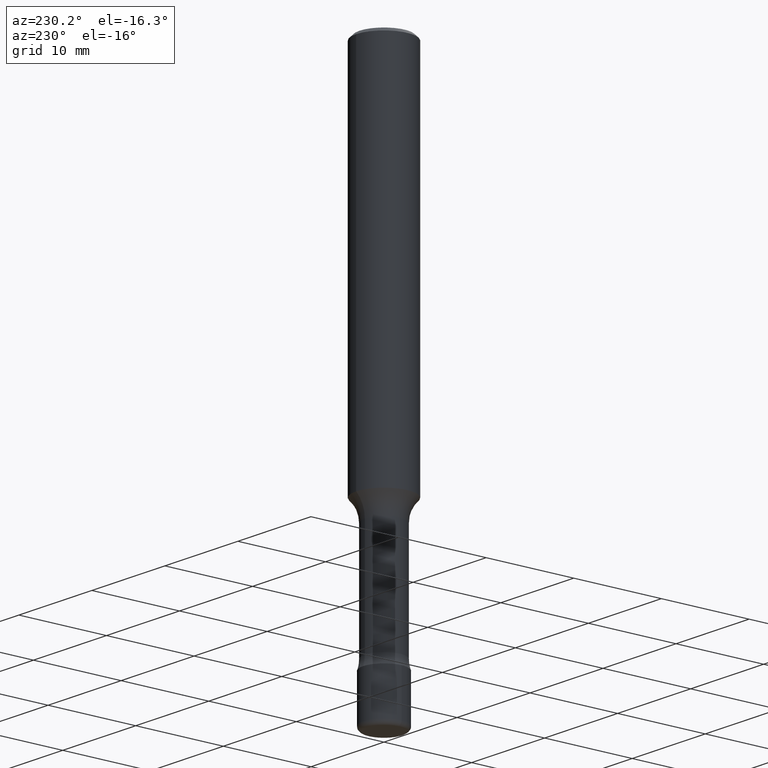
[diagram: clean part render]
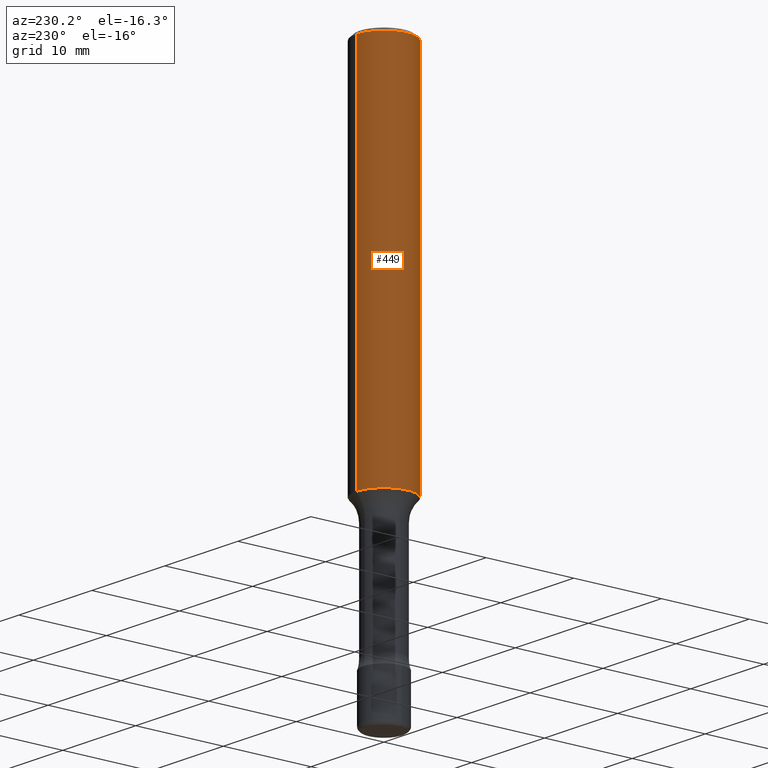
[diagram: same view with one face highlighted and labeled with its STEP entity id]
A machine part, auxiliary view. The second image highlights one B-rep face of the part: STEP entity #449.
In plain terms, the highlighted cylindrical surface (edge-blend (fillet) strip) has radius 3.175 mm, axis along (-0, 0, 1).
Its self-contained STEP definition (entity closure, byte-faithful):
#14 = CARTESIAN_POINT ( 'NONE',  ( 4.058307676616892084E-29, -5.792543071552269499E-15, -1.659286164230587390 ) ) ;
#36 = ORIENTED_EDGE ( 'NONE', *, *, #215, .T. ) ;
#45 = VERTEX_POINT ( 'NONE', #341 ) ;
#47 = EDGE_CURVE ( 'NONE', #242, #484, #496, .T. ) ;
#48 = FACE_OUTER_BOUND ( 'NONE', #67, .T. ) ;
#58 = VECTOR ( 'NONE', #223, 39.37007874015748143 ) ;
#61 = DIRECTION ( 'NONE',  ( -2.445815413942617356E-29, 3.490984976806744767E-15, 1.000000000000000000 ) ) ;
#66 = CARTESIAN_POINT ( 'NONE',  ( 3.668723120913929659E-31, -5.236477465210122771E-17, -0.01500000000000001506 ) ) ;
#67 = EDGE_LOOP ( 'NONE', ( #363, #36, #79, #245 ) ) ;
#79 = ORIENTED_EDGE ( 'NONE', *, *, #47, .T. ) ;
#80 = CARTESIAN_POINT ( 'NONE',  ( -1.169113584055446105E-44, 1.669184350826100908E-30, 4.780733988912460139E-16 ) ) ;
#87 = CYLINDRICAL_SURFACE ( 'NONE', #450, 0.1250000000000000000 ) ;
#118 = CARTESIAN_POINT ( 'NONE',  ( -8.728703347107426139E-16, -0.1250000000000057732, -1.659286164230586946 ) ) ;
#130 = VECTOR ( 'NONE', #451, 39.37007874015748143 ) ;
#135 = CARTESIAN_POINT ( 'NONE',  ( -8.728703347107832402E-16, -0.1250000000000000000, 9.144465209920891591E-16 ) ) ;
#182 = CIRCLE ( 'NONE', #466, 0.1250000000000000000 ) ;
#200 = DIRECTION ( 'NONE',  ( -2.445815413942617356E-29, 3.490984976806744767E-15, 1.000000000000000000 ) ) ;
#215 = EDGE_CURVE ( 'NONE', #45, #242, #404, .T. ) ;
#223 = DIRECTION ( 'NONE',  ( -2.445815413942617636E-29, 3.490984976806744767E-15, 1.000000000000000000 ) ) ;
#242 = VERTEX_POINT ( 'NONE', #118 ) ;
#245 = ORIENTED_EDGE ( 'NONE', *, *, #314, .F. ) ;
#283 = DIRECTION ( 'NONE',  ( -2.445815413942617356E-29, 3.490984976806744767E-15, 1.000000000000000000 ) ) ;
#284 = VERTEX_POINT ( 'NONE', #477 ) ;
#289 = DIRECTION ( 'NONE',  ( -6.982962677686265922E-15, -1.000000000000000000, 3.490984976806744767E-15 ) ) ;
#298 = AXIS2_PLACEMENT_3D ( 'NONE', #14, #61, #380 ) ;
#314 = EDGE_CURVE ( 'NONE', #284, #484, #182, .T. ) ;
#330 = CARTESIAN_POINT ( 'NONE',  ( -8.575622497214409523E-16, -0.1250000000000000555, -0.01499999999999957964 ) ) ;
#341 = CARTESIAN_POINT ( 'NONE',  ( 8.881784197001654642E-16, 0.1249999999999941713, -1.659286164230588057 ) ) ;
#363 = ORIENTED_EDGE ( 'NONE', *, *, #520, .F. ) ;
#380 = DIRECTION ( 'NONE',  ( -6.982962677686265922E-15, -1.000000000000000000, 4.370956789862821150E-15 ) ) ;
#385 = DIRECTION ( 'NONE',  ( -6.982962677686265922E-15, -1.000000000000000000, 3.483106191921935554E-15 ) ) ;
#404 = CIRCLE ( 'NONE', #298, 0.1250000000000000000 ) ;
#449 = ADVANCED_FACE ( 'NONE', ( #48 ), #87, .T. ) ;
#450 = AXIS2_PLACEMENT_3D ( 'NONE', #80, #200, #289 ) ;
#451 = DIRECTION ( 'NONE',  ( -2.445815413942617636E-29, 3.490984976806744767E-15, 1.000000000000000000 ) ) ;
#463 = CARTESIAN_POINT ( 'NONE',  ( 8.881784197001251337E-16, 0.1250000000000000000, 4.170027679040298583E-17 ) ) ;
#466 = AXIS2_PLACEMENT_3D ( 'NONE', #66, #283, #385 ) ;
#477 = CARTESIAN_POINT ( 'NONE',  ( 8.728703347107836346E-16, 0.1249999999999999445, -0.01500000000000045047 ) ) ;
#484 = VERTEX_POINT ( 'NONE', #330 ) ;
#487 = LINE ( 'NONE', #463, #58 ) ;
#496 = LINE ( 'NONE', #135, #130 ) ;
#520 = EDGE_CURVE ( 'NONE', #45, #284, #487, .T. ) ;